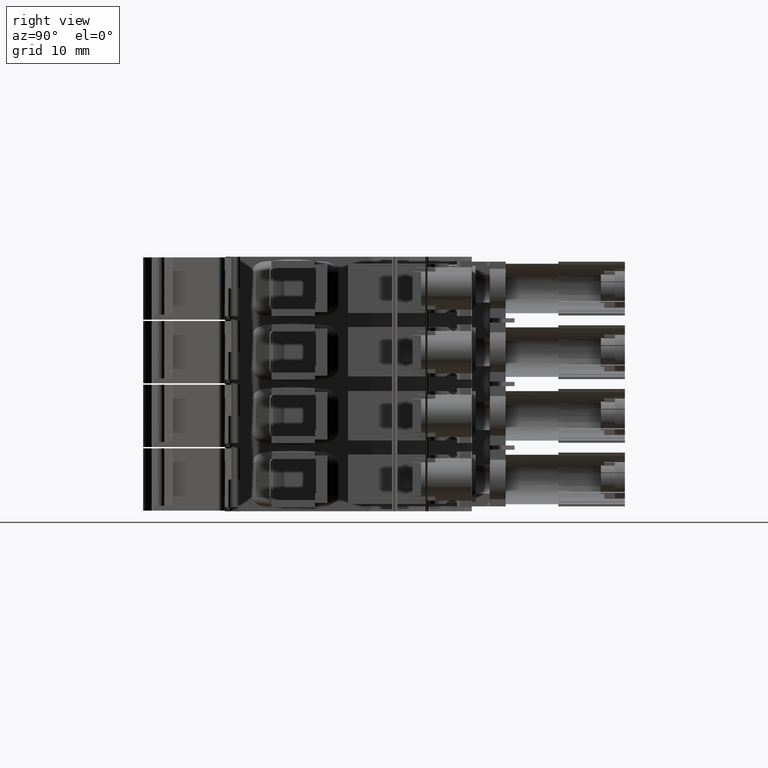
[diagram: clean part render]
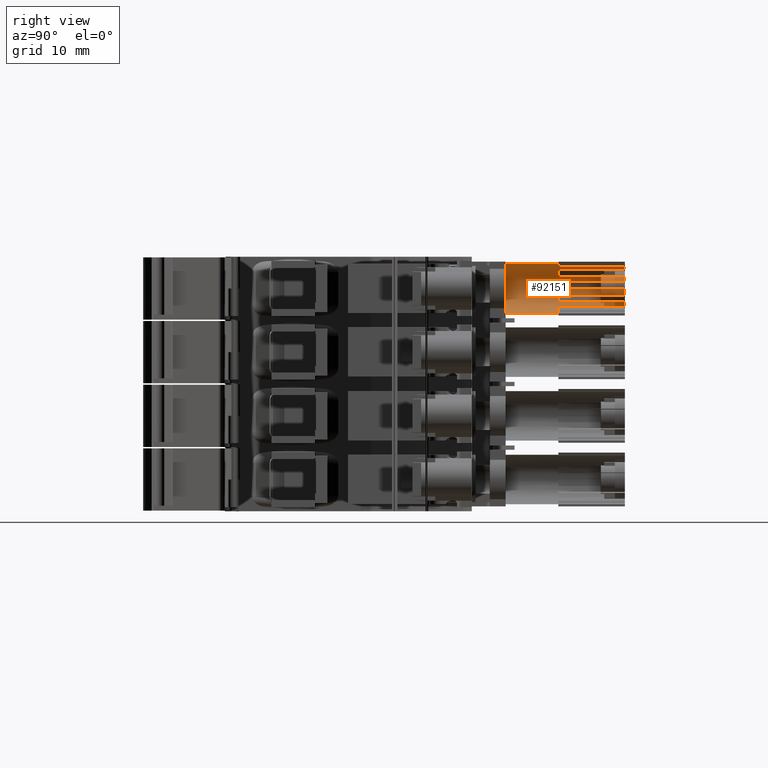
[diagram: same view with one face highlighted and labeled with its STEP entity id]
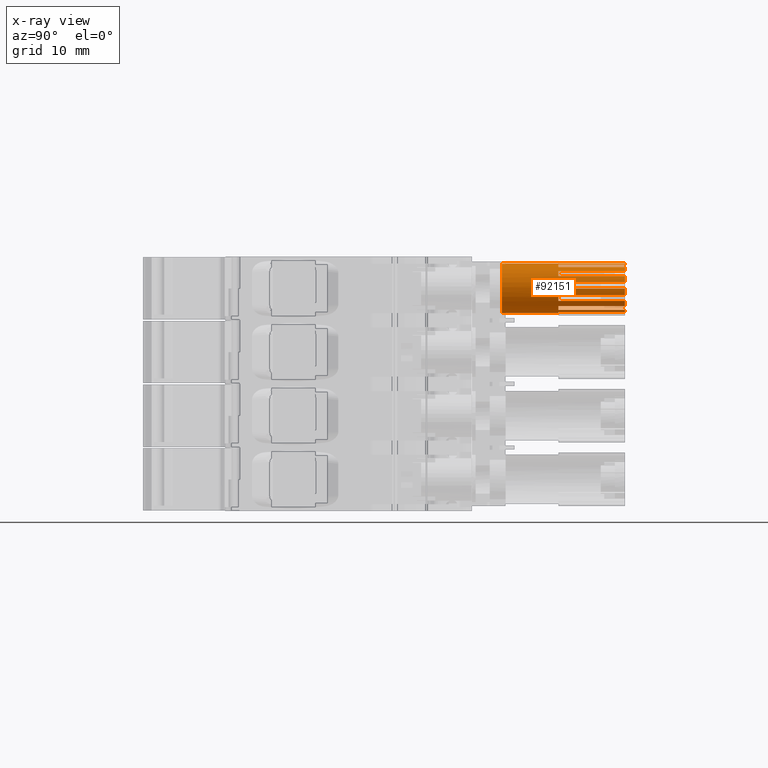
[diagram: x-ray of the same camera — body ghosted, the highlighted face saturated]
A machine part, right view. The second image highlights one B-rep face of the part: STEP entity #92151.
The next image is the same camera in x-ray: the body ghosted, the highlighted face saturated — about 0% of this face is hidden behind the body in this view.
In plain terms, the highlighted cylindrical surface (edge-blend (fillet) strip) has radius 3.5 mm, axis along (0, -1, 0).
Its self-contained STEP definition (entity closure, byte-faithful):
#3690 = VECTOR ( 'NONE', #42975, 1000.000000000000000 ) ;
#3694 = VECTOR ( 'NONE', #42987, 1000.000000000000000 ) ;
#3696 = VECTOR ( 'NONE', #42983, 1000.000000000000000 ) ;
#3697 = VECTOR ( 'NONE', #34727, 1000.000000000000000 ) ;
#4814 = VECTOR ( 'NONE', #42647, 1000.000000000000000 ) ;
#4820 = VECTOR ( 'NONE', #42693, 1000.000000000000000 ) ;
#4827 = VECTOR ( 'NONE', #44566, 1000.000000000000000 ) ;
#4980 = VECTOR ( 'NONE', #42624, 1000.000000000000000 ) ;
#5080 = VECTOR ( 'NONE', #42895, 1000.000000000000000 ) ;
#5093 = VECTOR ( 'NONE', #42951, 1000.000000000000000 ) ;
#5096 = VECTOR ( 'NONE', #42964, 1000.000000000000000 ) ;
#5109 = VECTOR ( 'NONE', #42848, 1000.000000000000000 ) ;
#11901 = DIRECTION ( 'NONE',  ( 0.0000000000000000000, -1.000000000000000000, 2.935721225546184700E-020 ) ) ;
#11947 = CARTESIAN_POINT ( 'NONE',  ( 459.1252094327940100, 169.7878730676889900, 34.90000000000313900 ) ) ;
#11992 = LINE ( 'NONE', #11947, #61091 ) ;
#12480 = DIRECTION ( 'NONE',  ( 0.0000000000000000000, -1.000000000000000000, 2.935721225546184700E-020 ) ) ;
#12484 = CARTESIAN_POINT ( 'NONE',  ( 459.1252094327940100, 169.7878730676889900, 27.89999999999686200 ) ) ;
#12523 = LINE ( 'NONE', #12484, #61386 ) ;
#18165 = EDGE_LOOP ( 'NONE', ( #66969, #66971, #66870, #66862, #66852, #66886, #66882, #66874, #66892, #67022, #66914, #66859, #66846, #66869, #66876, #67079, #66948, #67001, #66906, #66864, #66927, #66853, #66868, #67085, #66843, #66849, #66900 ) ) ;
#28688 = CARTESIAN_POINT ( 'NONE',  ( 459.1252094327940100, 147.7878730676890200, 34.90000000000313900 ) ) ;
#28749 = CARTESIAN_POINT ( 'NONE',  ( 459.1252094327940100, 147.7878730676890200, 27.89999999999686200 ) ) ;
#28783 = CARTESIAN_POINT ( 'NONE',  ( 459.1252094327940100, 155.7878730676889900, 34.90000000000313900 ) ) ;
#28843 = CARTESIAN_POINT ( 'NONE',  ( 459.1252094327940100, 155.7878730676889900, 27.89999999999685400 ) ) ;
#34697 = CARTESIAN_POINT ( 'NONE',  ( 459.7329013309188200, 155.7878730676889900, 27.94002653760803400 ) ) ;
#34702 = CARTESIAN_POINT ( 'NONE',  ( 460.0290405336540400, 155.7878730676889900, 28.01871483883126100 ) ) ;
#34704 = LINE ( 'NONE', #34737, #3697 ) ;
#34725 = CARTESIAN_POINT ( 'NONE',  ( 459.4316242972988100, 155.7878730676889900, 27.90045492466321900 ) ) ;
#34727 = DIRECTION ( 'NONE',  ( -0.0000000000000000000, 1.000000000000000000, -2.935721225546184700E-020 ) ) ;
#34737 = CARTESIAN_POINT ( 'NONE',  ( 460.0290405336539800, 169.7878730676889900, 28.01871483883122200 ) ) ;
#34741 = CARTESIAN_POINT ( 'NONE',  ( 459.1252094327940100, 155.7878730676889900, 27.89999999999685400 ) ) ;
#34982 = AXIS2_PLACEMENT_3D ( 'NONE', #78832, #78848, #78911 ) ;
#40478 = EDGE_CURVE ( 'NONE', #89246, #89288, #67882, .T. ) ;
#40480 = EDGE_CURVE ( 'NONE', #89234, #89235, #67641, .T. ) ;
#40512 = EDGE_CURVE ( 'NONE', #87177, #87201, #67806, .T. ) ;
#40515 = EDGE_CURVE ( 'NONE', #89230, #89239, #67823, .T. ) ;
#40519 = EDGE_CURVE ( 'NONE', #89297, #89302, #67831, .T. ) ;
#40523 = EDGE_CURVE ( 'NONE', #89235, #89297, #44546, .T. ) ;
#40541 = EDGE_CURVE ( 'NONE', #89261, #89250, #67633, .T. ) ;
#40543 = EDGE_CURVE ( 'NONE', #89249, #89262, #42572, .T. ) ;
#40547 = EDGE_CURVE ( 'NONE', #89302, #89230, #42625, .T. ) ;
#40548 = EDGE_CURVE ( 'NONE', #89272, #89291, #68218, .T. ) ;
#40550 = EDGE_CURVE ( 'NONE', #89262, #89255, #68202, .T. ) ;
#40552 = EDGE_CURVE ( 'NONE', #89271, #89240, #67978, .T. ) ;
#40555 = EDGE_CURVE ( 'NONE', #89239, #89261, #42686, .T. ) ;
#40560 = EDGE_CURVE ( 'NONE', #89248, #89249, #68072, .T. ) ;
#40569 = EDGE_CURVE ( 'NONE', #89277, #89283, #67993, .T. ) ;
#40572 = EDGE_CURVE ( 'NONE', #89291, #89271, #42857, .T. ) ;
#40574 = EDGE_CURVE ( 'NONE', #89242, #89236, #67973, .T. ) ;
#40575 = EDGE_CURVE ( 'NONE', #89288, #89248, #42903, .T. ) ;
#40578 = EDGE_CURVE ( 'NONE', #89283, #89242, #42886, .T. ) ;
#40580 = EDGE_CURVE ( 'NONE', #89240, #87209, #42906, .T. ) ;
#40588 = EDGE_CURVE ( 'NONE', #89255, #89272, #42981, .T. ) ;
#40589 = EDGE_CURVE ( 'NONE', #89236, #89246, #42958, .T. ) ;
#40590 = EDGE_CURVE ( 'NONE', #89250, #89277, #42960, .T. ) ;
#40603 = EDGE_CURVE ( 'NONE', #87231, #89335, #68028, .T. ) ;
#40604 = EDGE_CURVE ( 'NONE', #89335, #89234, #34704, .T. ) ;
#42572 = LINE ( 'NONE', #42618, #4980 ) ;
#42573 = CARTESIAN_POINT ( 'NONE',  ( 462.1527667917529800, 155.7878730676889900, 29.64389737252208300 ) ) ;
#42578 = CARTESIAN_POINT ( 'NONE',  ( 462.3063338595873700, 155.7878730676889900, 29.90955944595570800 ) ) ;
#42589 = CARTESIAN_POINT ( 'NONE',  ( 462.4233802283467300, 155.7878730676889900, 30.19044013490639200 ) ) ;
#42602 = CARTESIAN_POINT ( 'NONE',  ( 462.5039058980308400, 155.7878730676889900, 30.48653943937418700 ) ) ;
#42618 = CARTESIAN_POINT ( 'NONE',  ( 461.6041506046877300, 169.7878730676889900, 33.87079960059736500 ) ) ;
#42624 = DIRECTION ( 'NONE',  ( -0.0000000000000000000, 1.000000000000000000, -2.935721225546184700E-020 ) ) ;
#42625 = LINE ( 'NONE', #42649, #4814 ) ;
#42645 = CARTESIAN_POINT ( 'NONE',  ( 460.8787336529159700, 155.7878730676889900, 34.42905147025730600 ) ) ;
#42646 = CARTESIAN_POINT ( 'NONE',  ( 460.6121250099324700, 155.7878730676889900, 34.58286141045626000 ) ) ;
#42647 = DIRECTION ( 'NONE',  ( -0.0000000000000000000, 1.000000000000000000, -2.935721225546184700E-020 ) ) ;
#42649 = CARTESIAN_POINT ( 'NONE',  ( 461.5960090333917400, 169.7878730676889900, 28.92105882810665200 ) ) ;
#42651 = CARTESIAN_POINT ( 'NONE',  ( 460.3302508987278000, 155.7878730676889900, 34.69990905285105500 ) ) ;
#42652 = CARTESIAN_POINT ( 'NONE',  ( 460.0331113193020100, 155.7878730676889900, 34.78019439744179700 ) ) ;
#42657 = CARTESIAN_POINT ( 'NONE',  ( 459.4330526067606700, 165.1878730676890000, 34.89954085967443800 ) ) ;
#42663 = CARTESIAN_POINT ( 'NONE',  ( 461.6041506046878500, 165.1878730676890000, 33.87079960059750800 ) ) ;
#42664 = CARTESIAN_POINT ( 'NONE',  ( 460.0331113193019500, 165.1878730676890000, 34.78019439744179700 ) ) ;
#42665 = CARTESIAN_POINT ( 'NONE',  ( 459.1252094327940100, 165.1878730676890000, 34.90000000000314600 ) ) ;
#42671 = CARTESIAN_POINT ( 'NONE',  ( 459.7356865689299600, 165.1878730676890000, 34.85960565882063400 ) ) ;
#42674 = CARTESIAN_POINT ( 'NONE',  ( 461.3866067907613300, 165.1878730676890000, 34.08841045128917100 ) ) ;
#42676 = CARTESIAN_POINT ( 'NONE',  ( 460.8787336529159700, 165.1878730676890000, 34.42905147025730600 ) ) ;
#42679 = CARTESIAN_POINT ( 'NONE',  ( 461.1448011401706700, 165.1878730676890000, 34.27449440784241100 ) ) ;
#42686 = LINE ( 'NONE', #42695, #4820 ) ;
#42693 = DIRECTION ( 'NONE',  ( 0.0000000000000000000, -1.000000000000000000, 2.935721225546184700E-020 ) ) ;
#42695 = CARTESIAN_POINT ( 'NONE',  ( 462.1527667917530400, 169.7878730676889900, 29.64389737252206900 ) ) ;
#42702 = CARTESIAN_POINT ( 'NONE',  ( 462.1598175993220300, 155.7878730676889900, 33.14389027053403700 ) ) ;
#42704 = CARTESIAN_POINT ( 'NONE',  ( 462.0061733663137000, 155.7878730676889900, 33.41033243942327100 ) ) ;
#42705 = CARTESIAN_POINT ( 'NONE',  ( 461.6041506046877300, 155.7878730676889900, 33.87079960059750100 ) ) ;
#42706 = CARTESIAN_POINT ( 'NONE',  ( 461.8209510347691100, 155.7878730676889900, 33.65263554944449000 ) ) ;
#42824 = CARTESIAN_POINT ( 'NONE',  ( 462.5039058980308400, 165.1878730676890000, 30.48653943937419100 ) ) ;
#42825 = CARTESIAN_POINT ( 'NONE',  ( 462.5835976435123500, 165.1878730676890000, 30.78305235355860200 ) ) ;
#42827 = CARTESIAN_POINT ( 'NONE',  ( 462.6240289986597500, 165.1878730676890000, 31.08482535000196700 ) ) ;
#42829 = CARTESIAN_POINT ( 'NONE',  ( 462.6251999634727100, 165.1878730676890000, 31.39185842870424600 ) ) ;
#42845 = CARTESIAN_POINT ( 'NONE',  ( 460.0331113193019500, 169.7878730676889900, 34.78019439744184600 ) ) ;
#42848 = DIRECTION ( 'NONE',  ( -0.0000000000000000000, 1.000000000000000000, -2.935721225546184700E-020 ) ) ;
#42857 = LINE ( 'NONE', #42845, #5109 ) ;
#42886 = LINE ( 'NONE', #42946, #5093 ) ;
#42890 = CARTESIAN_POINT ( 'NONE',  ( 462.5079766836786900, 155.7878730676889900, 32.29826818176120200 ) ) ;
#42892 = CARTESIAN_POINT ( 'NONE',  ( 462.1598175993220300, 169.7878730676889900, 33.14389027053406500 ) ) ;
#42895 = DIRECTION ( 'NONE',  ( 0.0000000000000000000, -1.000000000000000000, 2.935721225546184700E-020 ) ) ;
#42901 = CARTESIAN_POINT ( 'NONE',  ( 462.5863828813955400, 155.7878730676889900, 32.00121825848567900 ) ) ;
#42903 = LINE ( 'NONE', #42892, #5080 ) ;
#42904 = CARTESIAN_POINT ( 'NONE',  ( 462.6251999634727100, 155.7878730676889900, 31.39185842870424600 ) ) ;
#42906 = LINE ( 'NONE', #42953, #5096 ) ;
#42908 = CARTESIAN_POINT ( 'NONE',  ( 462.6254573079935400, 155.7878730676889900, 31.69908167413333500 ) ) ;
#42946 = CARTESIAN_POINT ( 'NONE',  ( 462.6251999634724800, 169.7878730676889900, 31.39185842870424600 ) ) ;
#42951 = DIRECTION ( 'NONE',  ( 0.0000000000000000000, -1.000000000000000000, 2.935721225546184700E-020 ) ) ;
#42953 = CARTESIAN_POINT ( 'NONE',  ( 459.1252094327940100, 169.7878730676889900, 34.90000000000313900 ) ) ;
#42958 = LINE ( 'NONE', #42973, #3694 ) ;
#42960 = LINE ( 'NONE', #42995, #3690 ) ;
#42964 = DIRECTION ( 'NONE',  ( 0.0000000000000000000, -1.000000000000000000, 2.935721225546184700E-020 ) ) ;
#42973 = CARTESIAN_POINT ( 'NONE',  ( 462.5079766836785800, 169.7878730676889900, 32.29826818176115900 ) ) ;
#42975 = DIRECTION ( 'NONE',  ( -0.0000000000000000000, 1.000000000000000000, -2.935721225546184700E-020 ) ) ;
#42981 = LINE ( 'NONE', #42996, #3696 ) ;
#42983 = DIRECTION ( 'NONE',  ( 0.0000000000000000000, -1.000000000000000000, 2.935721225546184700E-020 ) ) ;
#42987 = DIRECTION ( 'NONE',  ( -0.0000000000000000000, 1.000000000000000000, -2.935721225546184700E-020 ) ) ;
#42995 = CARTESIAN_POINT ( 'NONE',  ( 462.5039058980307800, 169.7878730676889900, 30.48653943937421900 ) ) ;
#42996 = CARTESIAN_POINT ( 'NONE',  ( 460.8787336529159100, 169.7878730676889900, 34.42905147025726400 ) ) ;
#44218 = CARTESIAN_POINT ( 'NONE',  ( 460.0290405336539800, 165.1878730676890000, 28.01871483883126100 ) ) ;
#44225 = CARTESIAN_POINT ( 'NONE',  ( 462.4286393706117900, 165.1878730676890000, 32.59525878636083000 ) ) ;
#44226 = CARTESIAN_POINT ( 'NONE',  ( 462.3125863424928100, 165.1878730676890000, 32.87713281595174700 ) ) ;
#44231 = CARTESIAN_POINT ( 'NONE',  ( 462.5079766836788100, 165.1878730676890000, 32.29826818176120900 ) ) ;
#44234 = CARTESIAN_POINT ( 'NONE',  ( 460.3249917562070600, 165.1878730676890000, 28.09829483413307800 ) ) ;
#44235 = CARTESIAN_POINT ( 'NONE',  ( 462.1598175993220300, 165.1878730676890000, 33.14389027053403700 ) ) ;
#44236 = CARTESIAN_POINT ( 'NONE',  ( 460.6058725267714100, 165.1878730676890000, 28.21434913588754500 ) ) ;
#44237 = CARTESIAN_POINT ( 'NONE',  ( 460.8716828453471000, 165.1878730676890000, 28.36687774409475800 ) ) ;
#44434 = CARTESIAN_POINT ( 'NONE',  ( 460.3617567339987300, 147.7878730676890200, 34.67432128905450400 ) ) ;
#44437 = CARTESIAN_POINT ( 'NONE',  ( 462.2970907142420700, 147.7878730676890200, 32.88208145039744300 ) ) ;
#44438 = CARTESIAN_POINT ( 'NONE',  ( 462.6252431275144700, 147.7878730676889600, 31.17764019958456600 ) ) ;
#44439 = CARTESIAN_POINT ( 'NONE',  ( 462.3850211639952500, 147.7878730676890500, 30.12570034192880200 ) ) ;
#44445 = CARTESIAN_POINT ( 'NONE',  ( 460.3876719506938000, 147.7878730676890800, 34.66440996442744200 ) ) ;
#44446 = CARTESIAN_POINT ( 'NONE',  ( 461.2585702825859400, 147.7878730676890200, 34.21628155062563800 ) ) ;
#44453 = CARTESIAN_POINT ( 'NONE',  ( 462.3393968356225500, 147.7878730676889900, 32.78594620105297300 ) ) ;
#44457 = CARTESIAN_POINT ( 'NONE',  ( 460.3995090908671800, 147.7878730676890200, 34.65981173119978100 ) ) ;
#44458 = CARTESIAN_POINT ( 'NONE',  ( 461.7708396091310900, 147.7878730676890800, 33.70416982591988400 ) ) ;
#44459 = CARTESIAN_POINT ( 'NONE',  ( 462.3682588509554400, 147.7878730676890500, 32.71637991723215300 ) ) ;
#44460 = CARTESIAN_POINT ( 'NONE',  ( 462.3743509926904900, 147.7878730676890200, 32.70125243968992400 ) ) ;
#44461 = CARTESIAN_POINT ( 'NONE',  ( 459.1252094327940100, 147.7878730676890200, 34.90000000000313900 ) ) ;
#44462 = CARTESIAN_POINT ( 'NONE',  ( 459.3478248724122200, 147.7878730676889900, 34.89993253310133500 ) ) ;
#44463 = CARTESIAN_POINT ( 'NONE',  ( 462.2057750600170000, 147.7878730676890500, 33.06991354436397000 ) ) ;
#44465 = CARTESIAN_POINT ( 'NONE',  ( 462.5432282889146900, 147.7878730676890500, 32.27486088435655600 ) ) ;
#44466 = CARTESIAN_POINT ( 'NONE',  ( 462.4466890740324100, 147.7878730676890200, 30.29370243434993200 ) ) ;
#44467 = CARTESIAN_POINT ( 'NONE',  ( 462.2017828071646500, 147.7878730676889900, 29.66265010384382000 ) ) ;
#44468 = CARTESIAN_POINT ( 'NONE',  ( 461.9414909834959000, 147.7878730676890200, 29.26663915027032600 ) ) ;
#44469 = CARTESIAN_POINT ( 'NONE',  ( 461.1530335461350800, 147.7878730676890500, 28.52887932702682900 ) ) ;
#44470 = CARTESIAN_POINT ( 'NONE',  ( 460.0481378194073200, 147.7878730676889900, 34.77960077807742300 ) ) ;
#44471 = CARTESIAN_POINT ( 'NONE',  ( 462.4141996147805000, 147.7878730676890200, 30.20247662698200500 ) ) ;
#44473 = CARTESIAN_POINT ( 'NONE',  ( 462.5049429854967100, 147.7878730676890200, 30.47740713984033100 ) ) ;
#44474 = CARTESIAN_POINT ( 'NONE',  ( 462.3568098078432600, 147.7878730676890500, 32.74426983654223000 ) ) ;
#44476 = CARTESIAN_POINT ( 'NONE',  ( 462.6251420433622500, 147.7878730676890200, 31.84471960083085000 ) ) ;
#44477 = CARTESIAN_POINT ( 'NONE',  ( 460.7951229771081800, 147.7878730676890200, 28.31943437273634200 ) ) ;
#44481 = CARTESIAN_POINT ( 'NONE',  ( 459.6758278875594200, 147.7878730676889600, 34.86916431463975400 ) ) ;
#44483 = CARTESIAN_POINT ( 'NONE',  ( 460.2317027222086900, 147.7878730676889900, 34.72140218937364900 ) ) ;
#44484 = CARTESIAN_POINT ( 'NONE',  ( 461.9963301057130100, 147.7878730676890500, 33.42782411340749600 ) ) ;
#44485 = CARTESIAN_POINT ( 'NONE',  ( 462.3995550243468000, 147.7878730676889900, 30.16351411211945800 ) ) ;
#44486 = CARTESIAN_POINT ( 'NONE',  ( 462.5945507802675800, 147.7878730676890200, 30.84982891383954900 ) ) ;
#44487 = CARTESIAN_POINT ( 'NONE',  ( 460.6072908831623100, 147.7878730676889900, 28.22811871852834300 ) ) ;
#44488 = CARTESIAN_POINT ( 'NONE',  ( 460.8625593288930400, 147.7878730676890800, 34.47657337441397400 ) ) ;
#44490 = CARTESIAN_POINT ( 'NONE',  ( 460.3228376578289300, 147.7878730676890500, 34.68894868991608900 ) ) ;
#44491 = CARTESIAN_POINT ( 'NONE',  ( 462.3896318448427100, 147.7878730676890500, 30.13756893770526100 ) ) ;
#44492 = CARTESIAN_POINT ( 'NONE',  ( 461.4293792586760800, 147.7878730676890500, 28.75436982363213500 ) ) ;
#44493 = CARTESIAN_POINT ( 'NONE',  ( 460.4694792693272800, 147.7878730676890200, 28.16839962494333300 ) ) ;
#44502 = CARTESIAN_POINT ( 'NONE',  ( 460.4415893500216200, 147.7878730676890500, 28.15695058183473500 ) ) ;
#44512 = CARTESIAN_POINT ( 'NONE',  ( 461.8129066544931300, 165.1878730676890000, 29.13788754523688200 ) ) ;
#44513 = CARTESIAN_POINT ( 'NONE',  ( 461.5960090333918500, 165.1878730676890000, 28.92105882810653100 ) ) ;
#44516 = CARTESIAN_POINT ( 'NONE',  ( 460.0002408632796000, 147.7878730676890800, 27.98204869067134800 ) ) ;
#44518 = CARTESIAN_POINT ( 'NONE',  ( 459.5707970354568500, 147.7878730676890200, 27.90013504191077200 ) ) ;
#44524 = CARTESIAN_POINT ( 'NONE',  ( 460.5111556338314900, 147.7878730676890200, 28.18581259715870100 ) ) ;
#44531 = CARTESIAN_POINT ( 'NONE',  ( 462.1527667917530400, 165.1878730676890000, 29.64389737252208300 ) ) ;
#44532 = CARTESIAN_POINT ( 'NONE',  ( 460.4264565429174900, 147.7878730676890200, 28.15085632926630400 ) ) ;
#44534 = CARTESIAN_POINT ( 'NONE',  ( 461.3785624103572900, 155.7878730676889900, 28.70496926205958100 ) ) ;
#44535 = CARTESIAN_POINT ( 'NONE',  ( 459.1252094327940100, 147.7878730676890200, 27.89999999999686200 ) ) ;
#44538 = CARTESIAN_POINT ( 'NONE',  ( 461.1371203476757000, 155.7878730676889900, 28.52024223405568300 ) ) ;
#44539 = CARTESIAN_POINT ( 'NONE',  ( 461.9984925739468100, 165.1878730676890000, 29.37883372670878400 ) ) ;
#44543 = CARTESIAN_POINT ( 'NONE',  ( 461.5960090333917400, 155.7878730676889900, 28.92105882810653100 ) ) ;
#44544 = CARTESIAN_POINT ( 'NONE',  ( 460.8716828453471000, 155.7878730676889900, 28.36687774409475800 ) ) ;
#44546 = LINE ( 'NONE', #44577, #4827 ) ;
#44566 = DIRECTION ( 'NONE',  ( 0.0000000000000000000, -1.000000000000000000, 2.935721225546184700E-020 ) ) ;
#44577 = CARTESIAN_POINT ( 'NONE',  ( 460.8716828453470400, 169.7878730676889900, 28.36687774409481100 ) ) ;
#57920 = EDGE_CURVE ( 'NONE', #87209, #87177, #11992, .T. ) ;
#58010 = EDGE_CURVE ( 'NONE', #87231, #87201, #12523, .T. ) ;
#61091 = VECTOR ( 'NONE', #11901, 1000.000000000000000 ) ;
#61386 = VECTOR ( 'NONE', #12480, 1000.000000000000000 ) ;
#66843 = ORIENTED_EDGE ( 'NONE', *, *, #40603, .F. ) ;
#66846 = ORIENTED_EDGE ( 'NONE', *, *, #40574, .F. ) ;
#66849 = ORIENTED_EDGE ( 'NONE', *, *, #58010, .T. ) ;
#66852 = ORIENTED_EDGE ( 'NONE', *, *, #40548, .F. ) ;
#66853 = ORIENTED_EDGE ( 'NONE', *, *, #40523, .F. ) ;
#66859 = ORIENTED_EDGE ( 'NONE', *, *, #40589, .F. ) ;
#66862 = ORIENTED_EDGE ( 'NONE', *, *, #40572, .F. ) ;
#66864 = ORIENTED_EDGE ( 'NONE', *, *, #40547, .F. ) ;
#66868 = ORIENTED_EDGE ( 'NONE', *, *, #40480, .F. ) ;
#66869 = ORIENTED_EDGE ( 'NONE', *, *, #40578, .F. ) ;
#66870 = ORIENTED_EDGE ( 'NONE', *, *, #40552, .F. ) ;
#66874 = ORIENTED_EDGE ( 'NONE', *, *, #40543, .F. ) ;
#66876 = ORIENTED_EDGE ( 'NONE', *, *, #40569, .F. ) ;
#66882 = ORIENTED_EDGE ( 'NONE', *, *, #40550, .F. ) ;
#66886 = ORIENTED_EDGE ( 'NONE', *, *, #40588, .F. ) ;
#66892 = ORIENTED_EDGE ( 'NONE', *, *, #40560, .F. ) ;
#66900 = ORIENTED_EDGE ( 'NONE', *, *, #40512, .F. ) ;
#66906 = ORIENTED_EDGE ( 'NONE', *, *, #40515, .F. ) ;
#66914 = ORIENTED_EDGE ( 'NONE', *, *, #40478, .F. ) ;
#66927 = ORIENTED_EDGE ( 'NONE', *, *, #40519, .F. ) ;
#66948 = ORIENTED_EDGE ( 'NONE', *, *, #40541, .F. ) ;
#66969 = ORIENTED_EDGE ( 'NONE', *, *, #57920, .F. ) ;
#66971 = ORIENTED_EDGE ( 'NONE', *, *, #40580, .F. ) ;
#67001 = ORIENTED_EDGE ( 'NONE', *, *, #40555, .F. ) ;
#67022 = ORIENTED_EDGE ( 'NONE', *, *, #40575, .F. ) ;
#67079 = ORIENTED_EDGE ( 'NONE', *, *, #40590, .F. ) ;
#67085 = ORIENTED_EDGE ( 'NONE', *, *, #40604, .F. ) ;
#67633 = B_SPLINE_CURVE_WITH_KNOTS ( 'NONE', 3,
 ( #42573, #42578, #42589, #42602 ),
 .UNSPECIFIED., .F., .F.,
 ( 4, 4 ),
 ( 0.0000000000000000000, 1.000000000000000000 ),
 .UNSPECIFIED. ) ;
#67641 = B_SPLINE_CURVE_WITH_KNOTS ( 'NONE', 3,
 ( #44218, #44234, #44236, #44237 ),
 .UNSPECIFIED., .F., .F.,
 ( 4, 4 ),
 ( 0.0000000000000000000, 1.000000000000000000 ),
 .UNSPECIFIED. ) ;
#67806 = B_SPLINE_CURVE_WITH_KNOTS ( 'NONE', 3,
 ( #44461, #44462, #44481, #44470, #44483, #44490, #44434, #44445, #44457, #44488, #44446, #44458, #44484, #44463, #44437, #44453, #44474, #44459, #44460, #44465, #44476, #44438, #44486, #44473, #44466, #44471, #44485, #44491, #44439, #44467, #44468, #44492, #44469, #44477, #44487, #44524, #44493, #44502, #44532, #44516, #44518, #44535 ),
 .UNSPECIFIED., .F., .F.,
 ( 4, 1, 1, 1, 1, 2, 2, 2, 1, 1, 1, 1, 2, 2, 2, 1, 1, 1, 1, 2, 2, 2, 1, 1, 1, 1, 2, 2, 4 ),
 ( 0.0000000000000000000, 0.06250000000003834400, 0.09375000000006512800, 0.1093750000000787800, 0.1171875000000781900, 0.1210937500000778800, 0.1250000000000775800, 0.2500000000000706700, 0.3125000000000666100, 0.3437500000000685600, 0.3593750000000703900, 0.3671875000000712800, 0.3710937500000708900, 0.3750000000000705000, 0.5000000000000677200, 0.5625000000000662800, 0.5937500000000636200, 0.6093750000000649500, 0.6171875000000652800, 0.6210937500000685000, 0.6250000000000718300, 0.7500000000000479600, 0.8125000000000364200, 0.8437500000000243100, 0.8593750000000115500, 0.8671875000000117700, 0.8710937500000053300, 0.8749999999999987800, 1.000000000000000000 ),
 .UNSPECIFIED. ) ;
#67823 = B_SPLINE_CURVE_WITH_KNOTS ( 'NONE', 3,
 ( #44513, #44512, #44539, #44531 ),
 .UNSPECIFIED., .F., .F.,
 ( 4, 4 ),
 ( 0.0000000000000000000, 1.000000000000000000 ),
 .UNSPECIFIED. ) ;
#67831 = B_SPLINE_CURVE_WITH_KNOTS ( 'NONE', 3,
 ( #44544, #44538, #44534, #44543 ),
 .UNSPECIFIED., .F., .F.,
 ( 4, 4 ),
 ( 0.0000000000000000000, 1.000000000000000000 ),
 .UNSPECIFIED. ) ;
#67882 = B_SPLINE_CURVE_WITH_KNOTS ( 'NONE', 3,
 ( #44231, #44225, #44226, #44235 ),
 .UNSPECIFIED., .F., .F.,
 ( 4, 4 ),
 ( 0.0000000000000000000, 1.000000000000000000 ),
 .UNSPECIFIED. ) ;
#67973 = B_SPLINE_CURVE_WITH_KNOTS ( 'NONE', 3,
 ( #42904, #42908, #42901, #42890 ),
 .UNSPECIFIED., .F., .F.,
 ( 4, 4 ),
 ( 0.0000000000000000000, 1.000000000000000000 ),
 .UNSPECIFIED. ) ;
#67978 = B_SPLINE_CURVE_WITH_KNOTS ( 'NONE', 3,
 ( #42664, #42671, #42657, #42665 ),
 .UNSPECIFIED., .F., .F.,
 ( 4, 4 ),
 ( 0.0000000000000000000, 1.000000000000000000 ),
 .UNSPECIFIED. ) ;
#67993 = B_SPLINE_CURVE_WITH_KNOTS ( 'NONE', 3,
 ( #42824, #42825, #42827, #42829 ),
 .UNSPECIFIED., .F., .F.,
 ( 4, 4 ),
 ( 0.0000000000000000000, 1.000000000000000000 ),
 .UNSPECIFIED. ) ;
#68028 = B_SPLINE_CURVE_WITH_KNOTS ( 'NONE', 3,
 ( #34741, #34725, #34697, #34702 ),
 .UNSPECIFIED., .F., .F.,
 ( 4, 4 ),
 ( 0.0000000000000000000, 1.000000000000000000 ),
 .UNSPECIFIED. ) ;
#68072 = B_SPLINE_CURVE_WITH_KNOTS ( 'NONE', 3,
 ( #42702, #42704, #42706, #42705 ),
 .UNSPECIFIED., .F., .F.,
 ( 4, 4 ),
 ( 0.0000000000000000000, 1.000000000000000000 ),
 .UNSPECIFIED. ) ;
#68202 = B_SPLINE_CURVE_WITH_KNOTS ( 'NONE', 3,
 ( #42663, #42674, #42679, #42676 ),
 .UNSPECIFIED., .F., .F.,
 ( 4, 4 ),
 ( 0.0000000000000000000, 1.000000000000000000 ),
 .UNSPECIFIED. ) ;
#68218 = B_SPLINE_CURVE_WITH_KNOTS ( 'NONE', 3,
 ( #42645, #42646, #42651, #42652 ),
 .UNSPECIFIED., .F., .F.,
 ( 4, 4 ),
 ( 0.0000000000000000000, 1.000000000000000000 ),
 .UNSPECIFIED. ) ;
#78041 = CARTESIAN_POINT ( 'NONE',  ( 460.0290405336540400, 155.7878730676889900, 28.01871483883126100 ) ) ;
#78249 = CARTESIAN_POINT ( 'NONE',  ( 460.0331113193019500, 165.1878730676890000, 34.78019439744179700 ) ) ;
#78267 = CARTESIAN_POINT ( 'NONE',  ( 461.5960090333917400, 155.7878730676889900, 28.92105882810653100 ) ) ;
#78271 = CARTESIAN_POINT ( 'NONE',  ( 462.1598175993220300, 165.1878730676890000, 33.14389027053403700 ) ) ;
#78279 = CARTESIAN_POINT ( 'NONE',  ( 462.1527667917529800, 155.7878730676889900, 29.64389737252208300 ) ) ;
#78281 = CARTESIAN_POINT ( 'NONE',  ( 462.5039058980308400, 155.7878730676889900, 30.48653943937418700 ) ) ;
#78287 = CARTESIAN_POINT ( 'NONE',  ( 459.1252094327940100, 165.1878730676890000, 34.90000000000314600 ) ) ;
#78293 = CARTESIAN_POINT ( 'NONE',  ( 462.1598175993220300, 155.7878730676889900, 33.14389027053403700 ) ) ;
#78295 = CARTESIAN_POINT ( 'NONE',  ( 461.6041506046877300, 155.7878730676889900, 33.87079960059750100 ) ) ;
#78299 = CARTESIAN_POINT ( 'NONE',  ( 462.6251999634727100, 155.7878730676889900, 31.39185842870424600 ) ) ;
#78310 = CARTESIAN_POINT ( 'NONE',  ( 462.6251999634727100, 165.1878730676890000, 31.39185842870424600 ) ) ;
#78318 = CARTESIAN_POINT ( 'NONE',  ( 462.5039058980308400, 165.1878730676890000, 30.48653943937419100 ) ) ;
#78327 = CARTESIAN_POINT ( 'NONE',  ( 462.5079766836788100, 165.1878730676890000, 32.29826818176120900 ) ) ;
#78336 = CARTESIAN_POINT ( 'NONE',  ( 460.8787336529159700, 155.7878730676889900, 34.42905147025730600 ) ) ;
#78343 = CARTESIAN_POINT ( 'NONE',  ( 460.0331113193020100, 155.7878730676889900, 34.78019439744179700 ) ) ;
#78352 = CARTESIAN_POINT ( 'NONE',  ( 460.8716828453471000, 155.7878730676889900, 28.36687774409475800 ) ) ;
#78358 = CARTESIAN_POINT ( 'NONE',  ( 460.8787336529159700, 165.1878730676890000, 34.42905147025730600 ) ) ;
#78366 = CARTESIAN_POINT ( 'NONE',  ( 462.1527667917530400, 165.1878730676890000, 29.64389737252208300 ) ) ;
#78368 = CARTESIAN_POINT ( 'NONE',  ( 461.6041506046878500, 165.1878730676890000, 33.87079960059750800 ) ) ;
#78825 = FACE_OUTER_BOUND ( 'NONE', #18165, .T. ) ;
#78832 = CARTESIAN_POINT ( 'NONE',  ( 459.1252094327940100, 169.7878730676889900, 31.39999999999999900 ) ) ;
#78848 = DIRECTION ( 'NONE',  ( 0.0000000000000000000, -1.000000000000000000, 2.935721225546184700E-020 ) ) ;
#78860 = CYLINDRICAL_SURFACE ( 'NONE', #34982, 3.500000000003136200 ) ;
#78911 = DIRECTION ( 'NONE',  ( 0.0000000000000000000, 0.0000000000000000000, -1.000000000000000000 ) ) ;
#80302 = CARTESIAN_POINT ( 'NONE',  ( 461.5960090333918500, 165.1878730676890000, 28.92105882810653100 ) ) ;
#80307 = CARTESIAN_POINT ( 'NONE',  ( 462.5079766836786900, 155.7878730676889900, 32.29826818176120200 ) ) ;
#80311 = CARTESIAN_POINT ( 'NONE',  ( 460.0290405336539800, 165.1878730676890000, 28.01871483883126100 ) ) ;
#80312 = CARTESIAN_POINT ( 'NONE',  ( 460.8716828453471000, 165.1878730676890000, 28.36687774409475800 ) ) ;
#87177 = VERTEX_POINT ( 'NONE', #28688 ) ;
#87201 = VERTEX_POINT ( 'NONE', #28749 ) ;
#87209 = VERTEX_POINT ( 'NONE', #28783 ) ;
#87231 = VERTEX_POINT ( 'NONE', #28843 ) ;
#89230 = VERTEX_POINT ( 'NONE', #80302 ) ;
#89234 = VERTEX_POINT ( 'NONE', #80311 ) ;
#89235 = VERTEX_POINT ( 'NONE', #80312 ) ;
#89236 = VERTEX_POINT ( 'NONE', #80307 ) ;
#89239 = VERTEX_POINT ( 'NONE', #78366 ) ;
#89240 = VERTEX_POINT ( 'NONE', #78287 ) ;
#89242 = VERTEX_POINT ( 'NONE', #78299 ) ;
#89246 = VERTEX_POINT ( 'NONE', #78327 ) ;
#89248 = VERTEX_POINT ( 'NONE', #78293 ) ;
#89249 = VERTEX_POINT ( 'NONE', #78295 ) ;
#89250 = VERTEX_POINT ( 'NONE', #78281 ) ;
#89255 = VERTEX_POINT ( 'NONE', #78358 ) ;
#89261 = VERTEX_POINT ( 'NONE', #78279 ) ;
#89262 = VERTEX_POINT ( 'NONE', #78368 ) ;
#89271 = VERTEX_POINT ( 'NONE', #78249 ) ;
#89272 = VERTEX_POINT ( 'NONE', #78336 ) ;
#89277 = VERTEX_POINT ( 'NONE', #78318 ) ;
#89283 = VERTEX_POINT ( 'NONE', #78310 ) ;
#89288 = VERTEX_POINT ( 'NONE', #78271 ) ;
#89291 = VERTEX_POINT ( 'NONE', #78343 ) ;
#89297 = VERTEX_POINT ( 'NONE', #78352 ) ;
#89302 = VERTEX_POINT ( 'NONE', #78267 ) ;
#89335 = VERTEX_POINT ( 'NONE', #78041 ) ;
#92151 = ADVANCED_FACE ( 'NONE', ( #78825 ), #78860, .F. ) ;